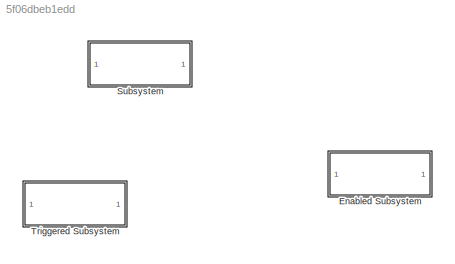
MODEL slx_5f06dbeb1edd
KIND model
CONFIG AbsTol = auto
CONFIG EnableMultiTasking = off
CONFIG FixedStep = auto
CONFIG MaxStep = auto
CONFIG MinStep = auto
CONFIG RelTol = 1e-3
CONFIG SampleTimeConstraint = Unconstrained
CONFIG Solver = VariableStepAuto
CONFIG SolverName = VariableStepAuto
CONFIG StartTime = 0.0
CONFIG StopTime = 10.0
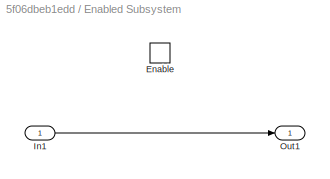
BLOCK [SubSystem] Enabled Subsystem
  Ports = [1, 1, 1]
  RequestExecContextInheritance = off
  TreatAsAtomicUnit = on
  Variant = off
BLOCK [EnablePort] Enabled Subsystem/Enable
  Ports = []
BLOCK [Inport] Enabled Subsystem/In1
  IconDisplay = Port number
BLOCK [Outport] Enabled Subsystem/Out1
  IconDisplay = Port number
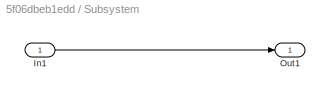
BLOCK [SubSystem] Subsystem
  Ports = [1, 1]
  RequestExecContextInheritance = off
  Variant = off
BLOCK [Inport] Subsystem/In1
  IconDisplay = Port number
BLOCK [Outport] Subsystem/Out1
  IconDisplay = Port number
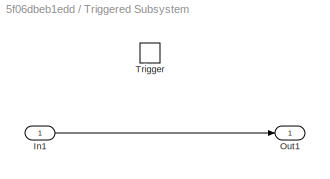
BLOCK [SubSystem] Triggered Subsystem
  Ports = [1, 1, 0, 1]
  RequestExecContextInheritance = off
  TreatAsAtomicUnit = on
  Variant = off
BLOCK [Inport] Triggered Subsystem/In1
  IconDisplay = Port number
BLOCK [Outport] Triggered Subsystem/Out1
  IconDisplay = Port number
BLOCK [TriggerPort] Triggered Subsystem/Trigger
  Ports = []
  StatesWhenEnabling = held
  VariantControl = Variant
LINE Enabled Subsystem/In1:1 -> Enabled Subsystem/Out1:1
LINE Subsystem/In1:1 -> Subsystem/Out1:1
LINE Triggered Subsystem/In1:1 -> Triggered Subsystem/Out1:1
